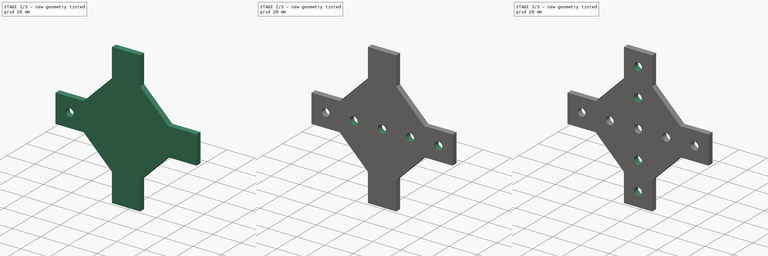
[diagram: build sequence overview — one tinted view per stage of 3, left to right]
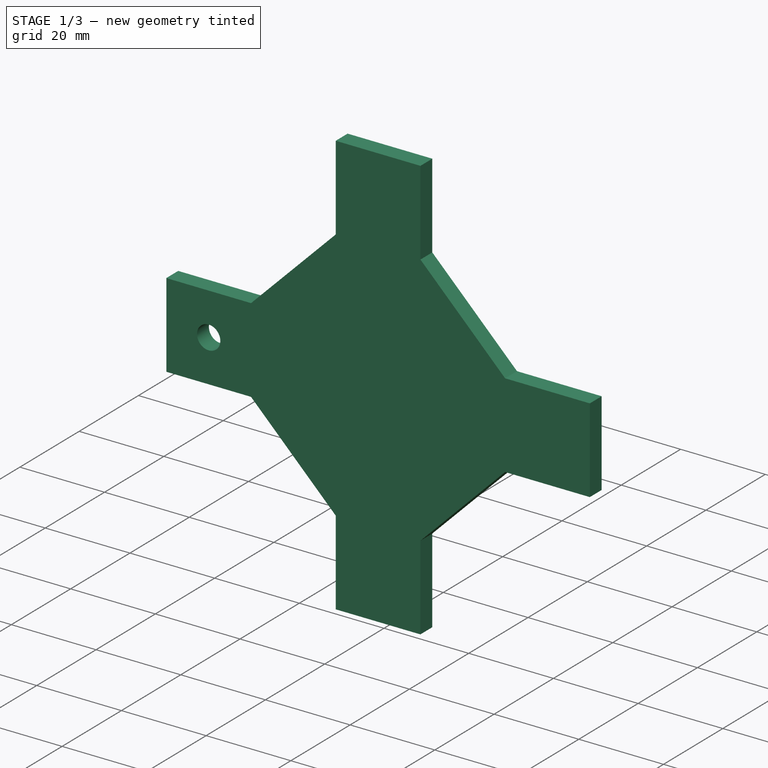
[diagram: stage 1 of 3 — iso view after this stage's code; geometry added in this stage tinted green]
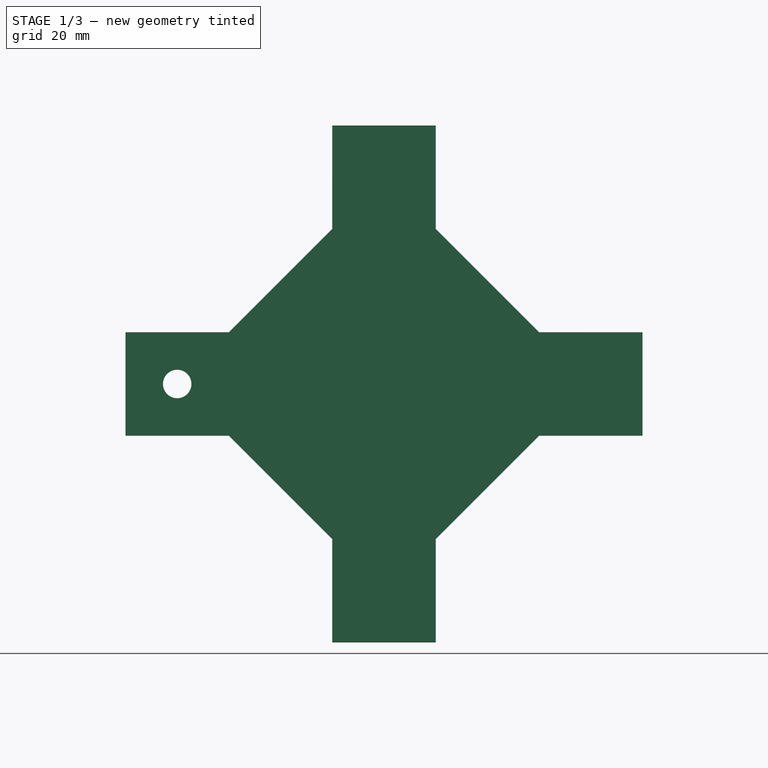
[diagram: stage 1 of 3 — front view after this stage's code; geometry added in this stage tinted green]
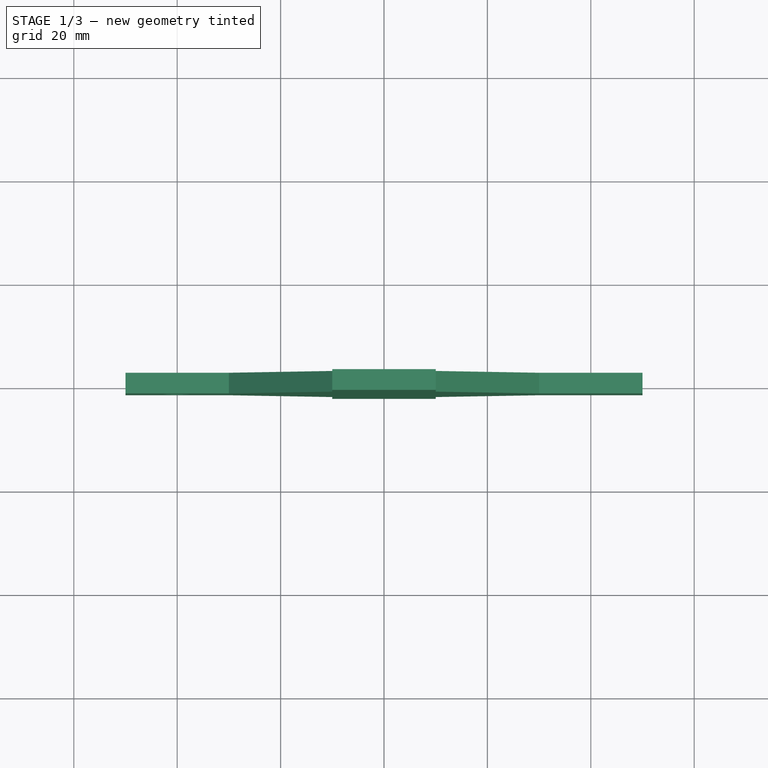
[diagram: stage 1 of 3 — top view after this stage's code; geometry added in this stage tinted green]
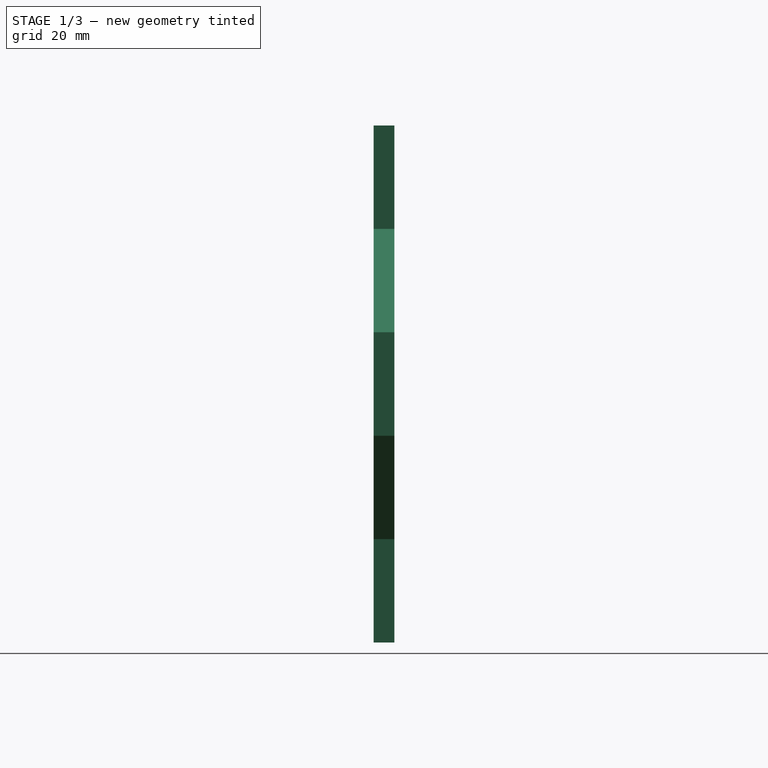
[diagram: stage 1 of 3 — right view after this stage's code; geometry added in this stage tinted green]
FCSTD DOCUMENT  (FreeCAD 0.21R30492 (Git))
Label: X-shape_brackets
License: Creative Commons Attribution-NonCommercial-ShareAlike
LicenseURL: http://creativecommons.org/licenses/by-nc-sa/4.0/
objects: Sketcher::SketchObject×3, PartDesign::Hole×2, PartDesign::LinearPattern×2, Spreadsheet::Sheet×1, PartDesign::Pad×1, PartDesign::Body×1, App::Part×1
note: 12 computed .brp shape members not serialized (recipe doc carries the construction recipe); baked Part::Feature solids carry a one-line shape summary decoded from their .brp

FEATURE [Sketcher::SketchObject] Sketch
  FullyConstrained = true
  MapMode = 5
  Placement = pos=(0,0,0) rot=(1,0,0;1.5708rad)
  Support = -> [XZ_Plane001]
  expr: Constraints[23] = <<Spreadsheet>>.Profile_size
  expr: Constraints[24] = <<Spreadsheet>>.Height
  expr: Constraints[25] = <<Spreadsheet>>.Width
  expr: Constraints[62] = <<Spreadsheet>>.ch_W
  expr: Constraints[63] = <<Spreadsheet>>.ch_H
  sketch-geometry (26):
    g0: LineSegment StartX=-10 StartY=50 StartZ=0 EndX=-10 EndY=-50 EndZ=0
    g1: LineSegment StartX=-10 StartY=-50 StartZ=0 EndX=10 EndY=-50 EndZ=0
    g2: LineSegment StartX=10 StartY=-50 StartZ=0 EndX=10 EndY=50 EndZ=0
    g3: LineSegment StartX=10 StartY=50 StartZ=0 EndX=-10 EndY=50 EndZ=0
    g4: GeomPoint X=0 Y=0 Z=0
    g5: LineSegment StartX=-50 StartY=-10 StartZ=0 EndX=-50 EndY=10 EndZ=0
    g6: LineSegment StartX=-50 StartY=10 StartZ=0 EndX=50 EndY=10 EndZ=0
    g7: LineSegment StartX=50 StartY=10 StartZ=0 EndX=50 EndY=-10 EndZ=0
    g8: LineSegment StartX=50 StartY=-10 StartZ=0 EndX=-50 EndY=-10 EndZ=0
    g9: GeomPoint X=0 Y=0 Z=0
    g10: LineSegment StartX=-10 StartY=50 StartZ=0 EndX=10 EndY=50 EndZ=0
    g11: LineSegment StartX=10 StartY=50 StartZ=0 EndX=10 EndY=30 EndZ=0
    g12: LineSegment StartX=10 StartY=30 StartZ=0 EndX=30 EndY=10 EndZ=0
    g13: LineSegment StartX=30 StartY=10 StartZ=0 EndX=50 EndY=10 EndZ=0
    g14: LineSegment StartX=50 StartY=10 StartZ=0 EndX=50 EndY=-10 EndZ=0
    g15: LineSegment StartX=50 StartY=-10 StartZ=0 EndX=30 EndY=-10 EndZ=0
    g16: LineSegment StartX=30 StartY=-10 StartZ=0 EndX=10 EndY=-30 EndZ=0
    g17: LineSegment StartX=10 StartY=-30 StartZ=0 EndX=10 EndY=-50 EndZ=0
    g18: LineSegment StartX=10 StartY=-50 StartZ=0 EndX=-10 EndY=-50 EndZ=0
    g19: LineSegment StartX=-10 StartY=-50 StartZ=0 EndX=-10 EndY=-30 EndZ=0
    g20: LineSegment StartX=-10 StartY=-30 StartZ=0 EndX=-30 EndY=-10 EndZ=0
    g21: LineSegment StartX=-30 StartY=-10 StartZ=0 EndX=-50 EndY=-10 EndZ=0
    g22: LineSegment StartX=-50 StartY=-10 StartZ=0 EndX=-50 EndY=10 EndZ=0
    g23: LineSegment StartX=-50 StartY=10 StartZ=0 EndX=-30 EndY=10 EndZ=0
    g24: LineSegment StartX=-30 StartY=10 StartZ=0 EndX=-10 EndY=30 EndZ=0
    g25: LineSegment StartX=-10 StartY=30 StartZ=0 EndX=-10 EndY=50 EndZ=0
  constraints (64):
    c: Coincident(g0,g1)
    c: Coincident(g1,g2)
    c: Coincident(g2,g3)
    c: Coincident(g3,g0)
    c: Horizontal(g1)
    c: Horizontal(g3)
    c: Vertical(g0)
    c: Vertical(g2)
    c: Symmetric(g1,g0,g4)
    c: Coincident(g4,g-1)
    c: Coincident(g5,g6)
    c: Coincident(g6,g7)
    c: Coincident(g7,g8)
    c: Coincident(g8,g5)
    c: Horizontal(g6)
    c: Horizontal(g8)
    c: Vertical(g5)
    c: Vertical(g7)
    c: Symmetric(g6,g5,g9)
    c: Coincident(g9,g4)
    c: Equal(g3,g7)
    c: Coincident(g10,g0)
    c: Coincident(g10,g2)
    c: DistanceX(g10,g10) = 20
    c: DistanceY(g0,g0) = 100
    c: DistanceX(g8,g8) = 100
    c: Coincident(g10,g11)
    c: PointOnObject(g11,g2)
    c: Coincident(g11,g12)
    c: PointOnObject(g12,g6)
    c: Coincident(g12,g13)
    c: Coincident(g13,g6)
    c: Coincident(g13,g14)
    c: Coincident(g14,g7)
    c: Coincident(g14,g15)
    c: PointOnObject(g15,g8)
    c: Coincident(g15,g16)
    c: PointOnObject(g16,g2)
    c: Coincident(g16,g17)
    c: Coincident(g17,g1)
    c: Coincident(g17,g18)
    c: Coincident(g18,g0)
    c: Coincident(g18,g19)
    c: PointOnObject(g19,g0)
    c: Coincident(g19,g20)
    c: PointOnObject(g20,g8)
    c: Coincident(g20,g21)
    c: Coincident(g21,g5)
    c: Coincident(g21,g22)
    c: Coincident(g22,g5)
    c: Coincident(g22,g23)
    c: PointOnObject(g23,g6)
    c: Coincident(g23,g24)
    c: PointOnObject(g24,g0)
    c: Coincident(g24,g25)
    c: Coincident(g25,g10)
    c: Equal(g17,g19)
    c: Equal(g19,g25)
    c: Equal(g25,g11)
    c: Equal(g13,g15)
    c: Equal(g15,g21)
    c: Equal(g21,g23)
    c: DistanceX(g12,g12) = 20
    c: DistanceY(g12,g12) = 20
FEATURE [Spreadsheet::Sheet] Spreadsheet
  cells = A1=Collection of X shape corner brackets to be used wth T slot Aluminum profiles; A4=Profile size:; B4(Profile_size)=20; C4=Could be: 20, 30, 40; A6=Model; B6=Width; C6=Height; D6=Chamfer Width; E6=Chamfer Height; F6=Horizontal holes; G6=Vertical holes; H6=Hole size; A7==hiddenref(Part.shapeType.String); B7(Width)==.B12; C7(Height)==.C12; D7(ch_W)==.D12; E7(ch_H)==.E12; F7(holesH)==.F12; G7(holesV)==.G12; H7(hole_size)==.H12; A8=Short 1; B8==3 * B4; C8==5 * B4; D8=0.1; E8=0.1; F8=3; G8=5; H8=M5; A9=Short 2; B9==3 * B4; C9==5 * B4; D9==B4 - 0.1; E9==B4; F9=3; G9=5; H9=M5; A10=Short 3; B10==3 * B4; C10==5 * B4; D10==B4 - 0.1; E10==2 * B4 - 0.1; F10=3; G10=5; H10=M5; A11=Uniform 1; B11==5 * B4; C11==5 * B4; D11=0.1; E11=0.1; F11=5; G11=5; H11=M5; A12=Uniform 2; B12==5 * B4; C12==5 * B4; D12==B4; E12==B4; F12=5; G12=5; H12=M5; A13=Uniform 3; B13==5 * B4; C13==5 * B4; D13==2 * B4 - 0.1; E13==2 * B4 - 0.1; F13=5; G13=5; H13=M5
  expr: .cells.Bind.B7.ZZ7 = tuple(.cells; <<B>> + str(hiddenref(Part.shapeType) + 8); <<ZZ>> + str(hiddenref(Part.shapeType) + 8))
FEATURE [PartDesign::Pad] Pad
  Direction = (0,-1,2e-16)
  Length = 4
  Length2 = 10
  Midplane = true
  Placement = pos=(0,0,0) rot=(1,0,0;1.5708rad)
  Profile = -> Sketch
  ReferenceAxis = -> Sketch [N_Axis]
  Type = 0
FEATURE [Sketcher::SketchObject] Sketch001
  AttachmentOffset = pos=(0,0,2) rot=(0,0,1;0rad)
  FullyConstrained = true
  MapMode = 5
  Placement = pos=(0,-2,4e-16) rot=(1,0,0;1.5708rad)
  Support = -> [XZ_Plane001]
  expr: Constraints[1] = 10 + -<<Spreadsheet>>.holesH * <<Spreadsheet>>.Profile_size / 2
  sketch-geometry (1):
    g0: Circle CenterX=-40 CenterY=0 CenterZ=0 NormalX=0 NormalY=0 NormalZ=1 AngleXU=0 Radius=2.5
  constraints (3):
    c: Diameter(g0) = 5
    c: DistanceX(g0) = -40
    c: PointOnObject(g0,g-1)
FEATURE [PartDesign::Hole] Hole  label="Hole_H"
  BaseFeature = -> Pad
  CustomThreadClearance = 0
  Depth = 25
  DepthType = 0
  Diameter = 5.5
  DrillForDepth = false
  DrillPoint = 1
  DrillPointAngle = 118
  HoleCutCountersinkAngle = 90
  HoleCutCustomValues = false
  HoleCutDepth = 0
  HoleCutDiameter = 6.1
  HoleCutType = 0
  ModelThread = false
  Placement = pos=(0,0,0) rot=(1,0,0;1.5708rad)
  Profile = -> Sketch001
  Tapered = false
  TaperedAngle = 90
  ThreadClass = 0
  ThreadDepth = 25
  ThreadDepthType = 0
  ThreadDirection = 0
  ThreadFit = 0
  ThreadSize = 13
  ThreadType = 1
  Threaded = false
  UseCustomThreadClearance = false
  expr: ThreadSize = <<Spreadsheet>>.hole_size
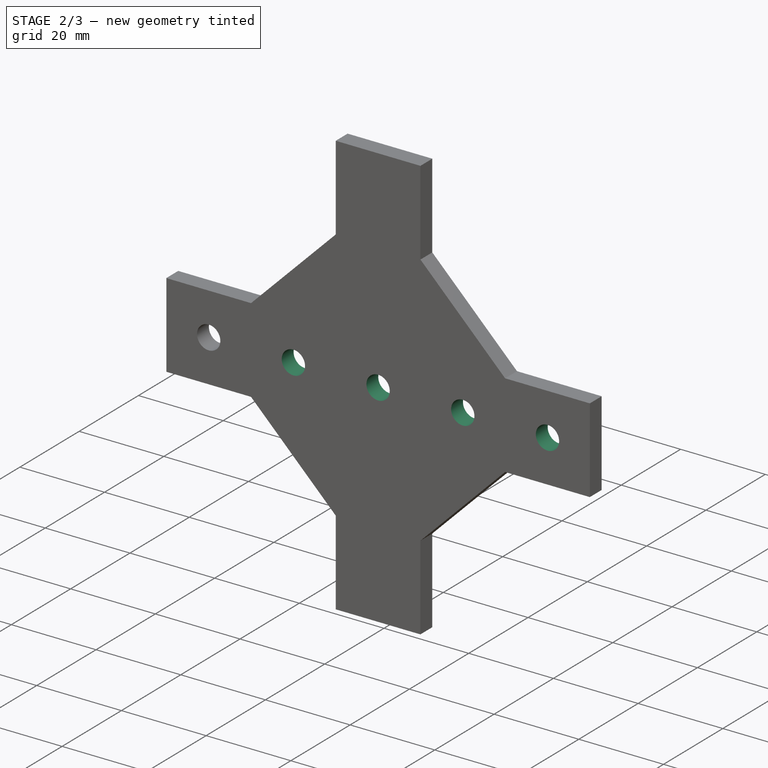
[diagram: stage 2 of 3 — iso view after this stage's code; geometry added in this stage tinted green]
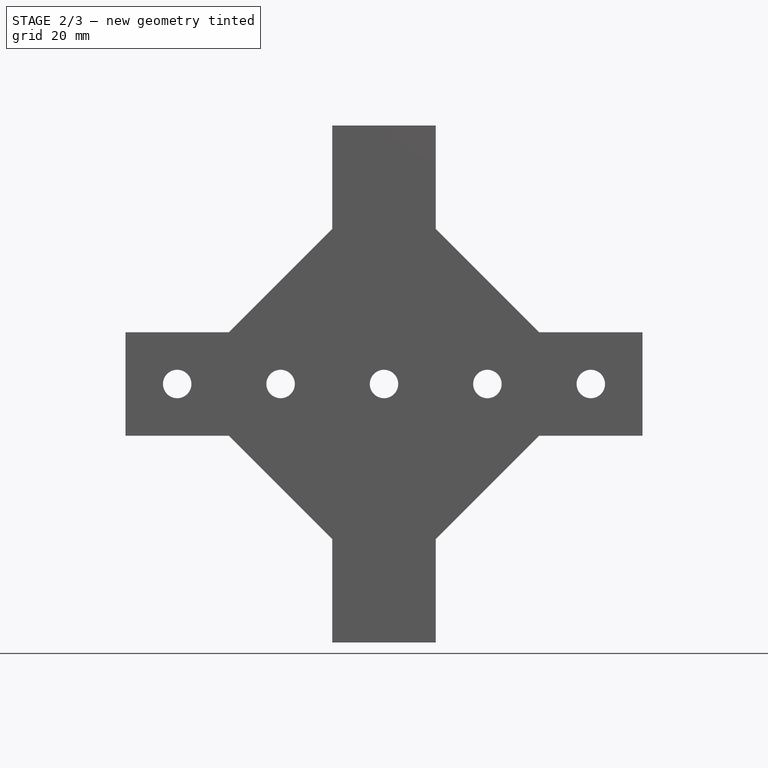
[diagram: stage 2 of 3 — front view after this stage's code; geometry added in this stage tinted green]
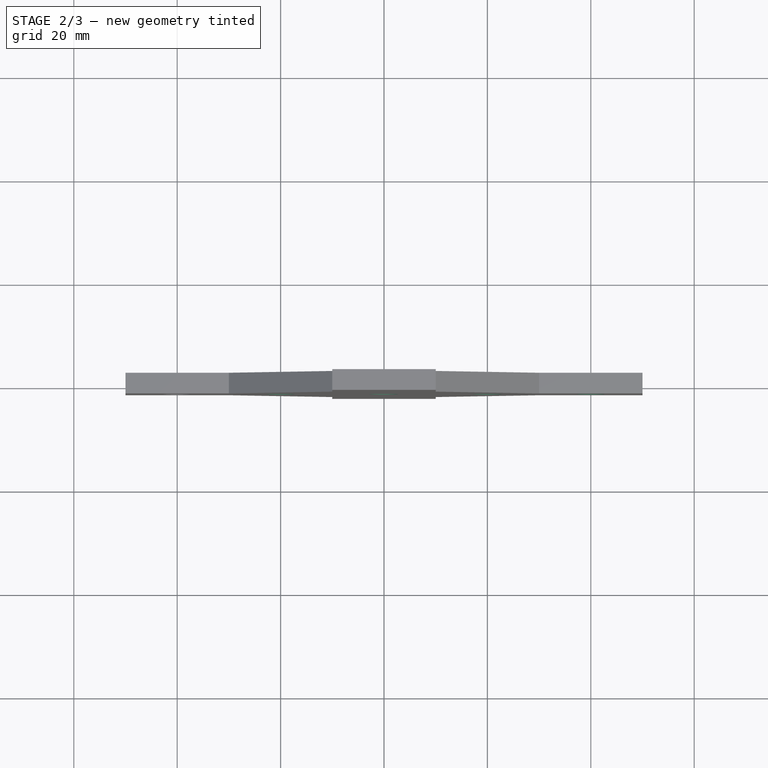
[diagram: stage 2 of 3 — top view after this stage's code; geometry added in this stage tinted green]
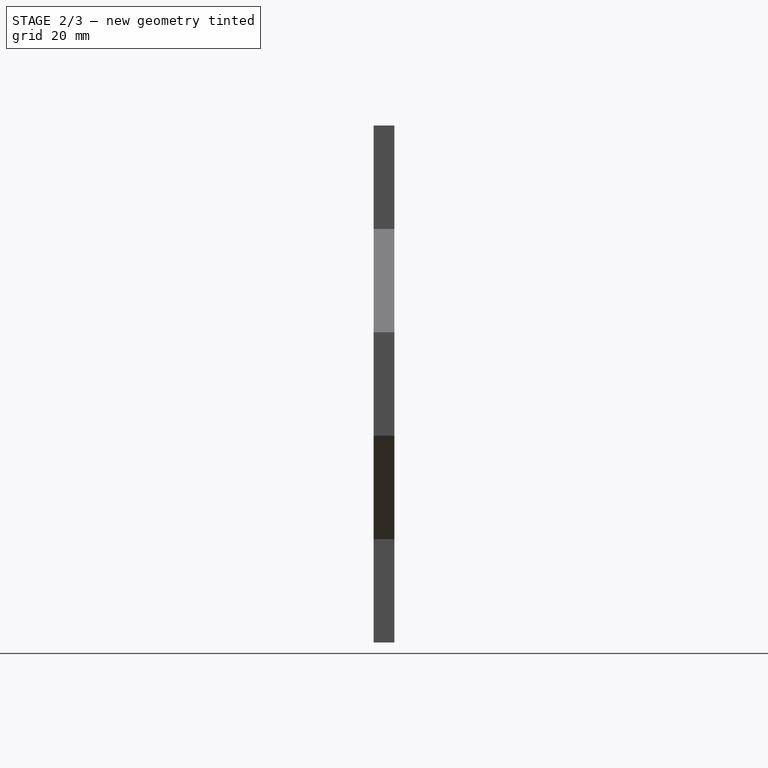
[diagram: stage 2 of 3 — right view after this stage's code; geometry added in this stage tinted green]
FEATURE [PartDesign::LinearPattern] LinearPattern
  BaseFeature = -> Hole
  Direction = -> Sketch001 [H_Axis]
  Length = 80
  Occurrences = 5
  Originals = -> [Hole]
  Placement = pos=(0,0,0) rot=(1,0,0;1.5708rad)
  expr: Length = <<Spreadsheet>>.Profile_size * (Spreadsheet.holesH - 1)
  expr: Occurrences = <<Spreadsheet>>.holesH
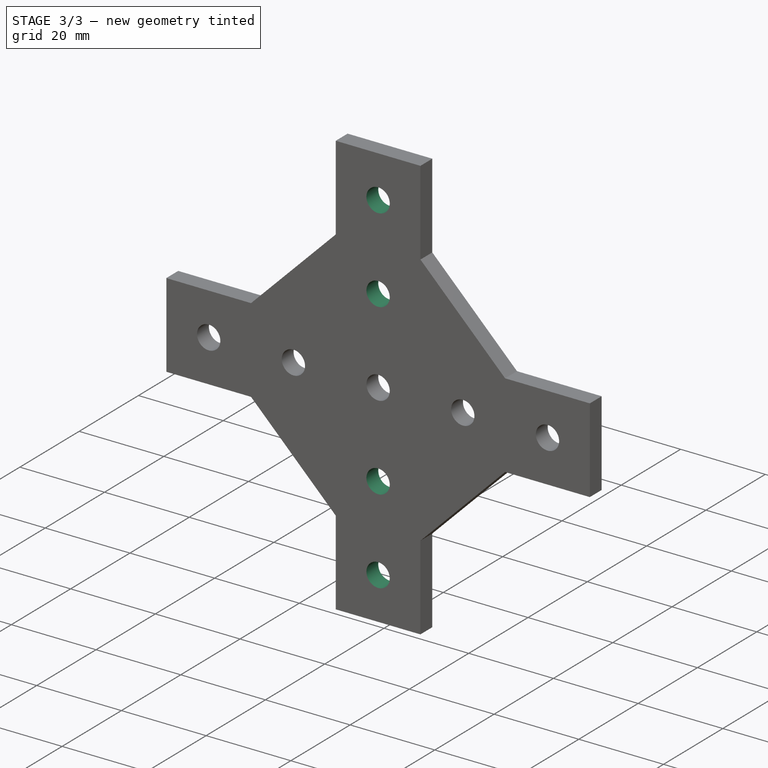
[diagram: stage 3 of 3 — iso view after this stage's code; geometry added in this stage tinted green]
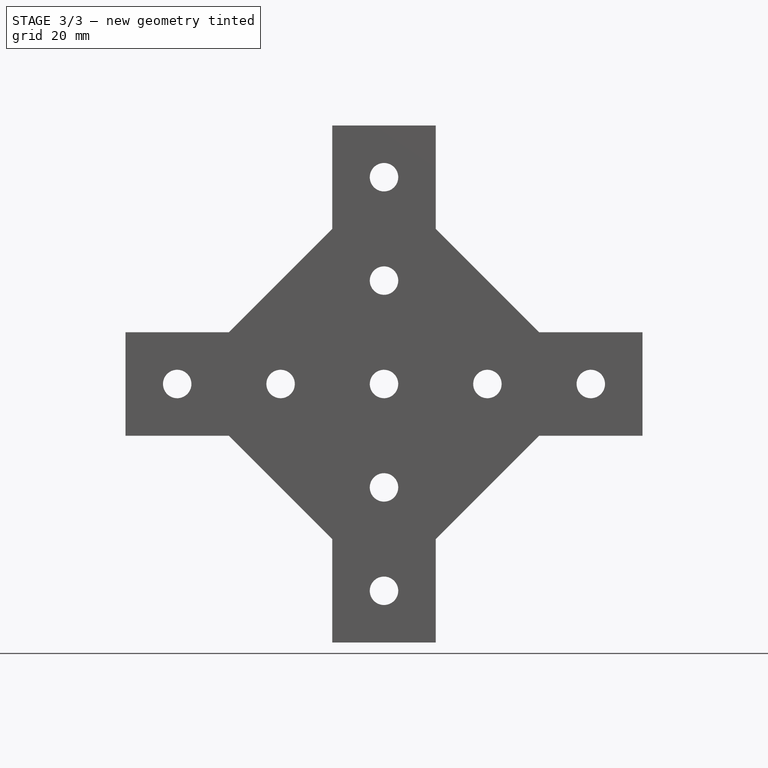
[diagram: stage 3 of 3 — front view after this stage's code; geometry added in this stage tinted green]
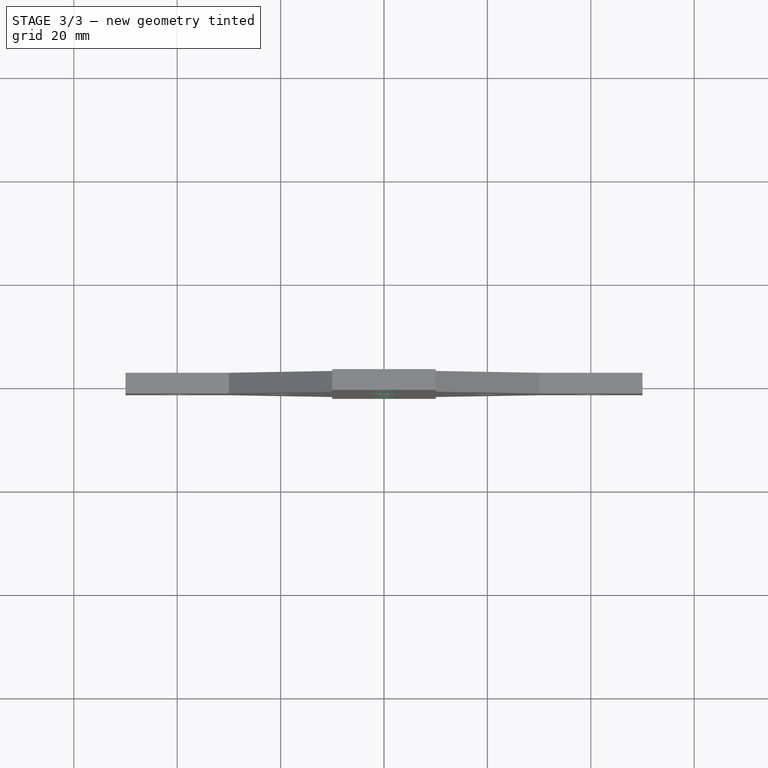
[diagram: stage 3 of 3 — top view after this stage's code; geometry added in this stage tinted green]
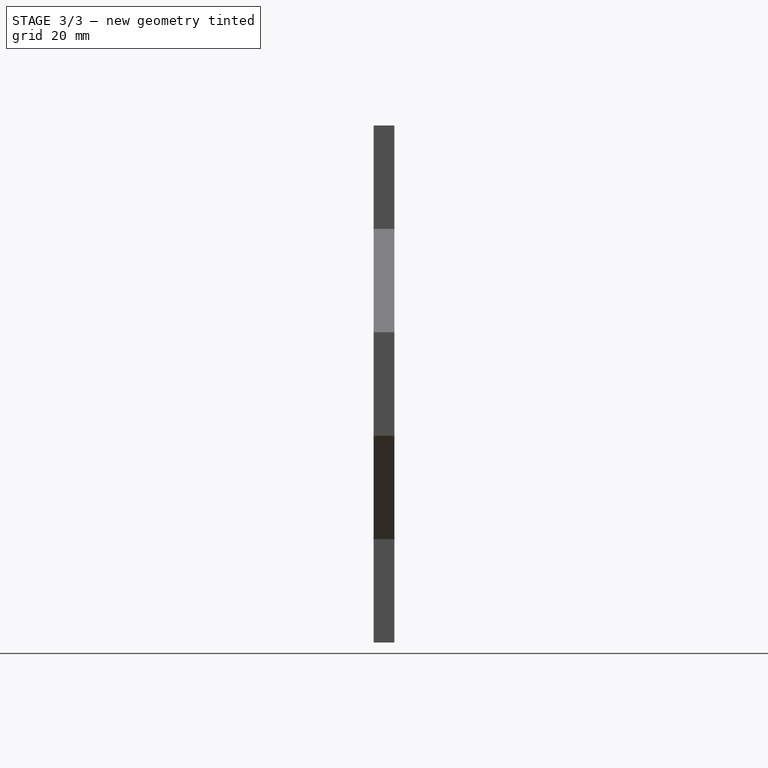
[diagram: stage 3 of 3 — right view after this stage's code; geometry added in this stage tinted green]
FEATURE [Sketcher::SketchObject] Sketch002
  AttachmentOffset = pos=(0,0,2) rot=(0,0,1;0rad)
  FullyConstrained = true
  MapMode = 5
  Placement = pos=(0,-2,4e-16) rot=(1,0,0;1.5708rad)
  Support = -> [XZ_Plane001]
  expr: Constraints[2] = 10 + -<<Spreadsheet>>.holesV * <<Spreadsheet>>.Profile_size / 2
  sketch-geometry (1):
    g0: Circle CenterX=0 CenterY=-40 CenterZ=0 NormalX=0 NormalY=0 NormalZ=1 AngleXU=0 Radius=2.5
  constraints (3):
    c: PointOnObject(g0,g-2)
    c: Diameter(g0) = 5
    c: DistanceY(g0) = -40
FEATURE [PartDesign::Hole] Hole001  label="Hole_V"
  BaseFeature = -> LinearPattern
  CustomThreadClearance = 0
  Depth = 25
  DepthType = 0
  Diameter = 5.5
  DrillForDepth = false
  DrillPoint = 1
  DrillPointAngle = 118
  HoleCutCountersinkAngle = 90
  HoleCutCustomValues = false
  HoleCutDepth = 0
  HoleCutDiameter = 6.1
  HoleCutType = 0
  ModelThread = false
  Placement = pos=(0,0,0) rot=(1,0,0;1.5708rad)
  Profile = -> Sketch002
  Tapered = false
  TaperedAngle = 90
  ThreadClass = 0
  ThreadDepth = 25
  ThreadDepthType = 0
  ThreadDirection = 0
  ThreadFit = 0
  ThreadSize = 13
  ThreadType = 1
  Threaded = false
  UseCustomThreadClearance = false
  expr: ThreadSize = <<Spreadsheet>>.hole_size
FEATURE [PartDesign::LinearPattern] LinearPattern001
  BaseFeature = -> Hole001
  Direction = -> Sketch002 [V_Axis]
  Length = 80
  Occurrences = 5
  Originals = -> [Hole001]
  Placement = pos=(0,0,0) rot=(1,0,0;1.5708rad)
  expr: Length = <<Spreadsheet>>.Profile_size * (Spreadsheet.holesV - 1)
  expr: Occurrences = <<Spreadsheet>>.holesV
FEATURE [PartDesign::Body] Body
  Group = -> [Sketch,Pad,Sketch001,Hole,LinearPattern,Sketch002,Hole001,LinearPattern001]
  Origin = -> Origin001
  Tip = -> LinearPattern001
FEATURE [App::Part] Part  label="X shape bracket"
  Group = -> [Body]
  Origin = -> Origin
  shapeType = 4
  expr: .shapeType.Enum = Spreadsheet.cells[<<A8:|>>]
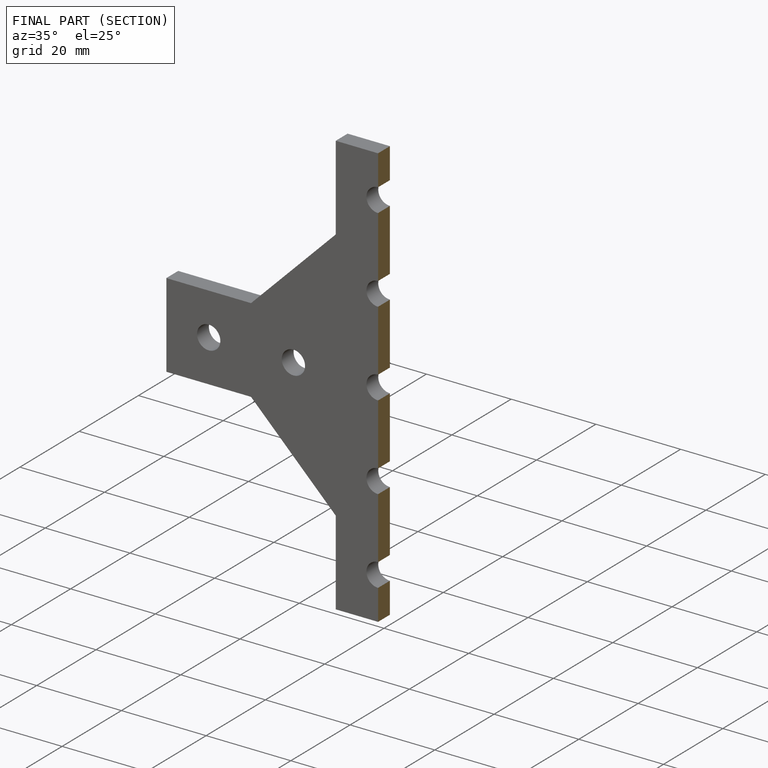
[diagram: finished part — half-section view (interior)]
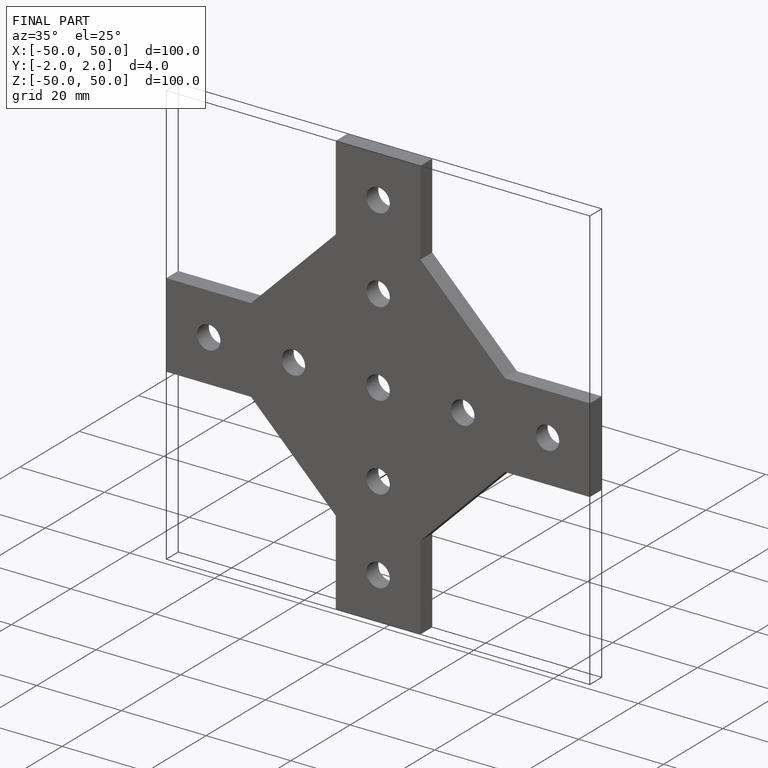
[diagram: finished part — iso view with bounding-box wireframe]
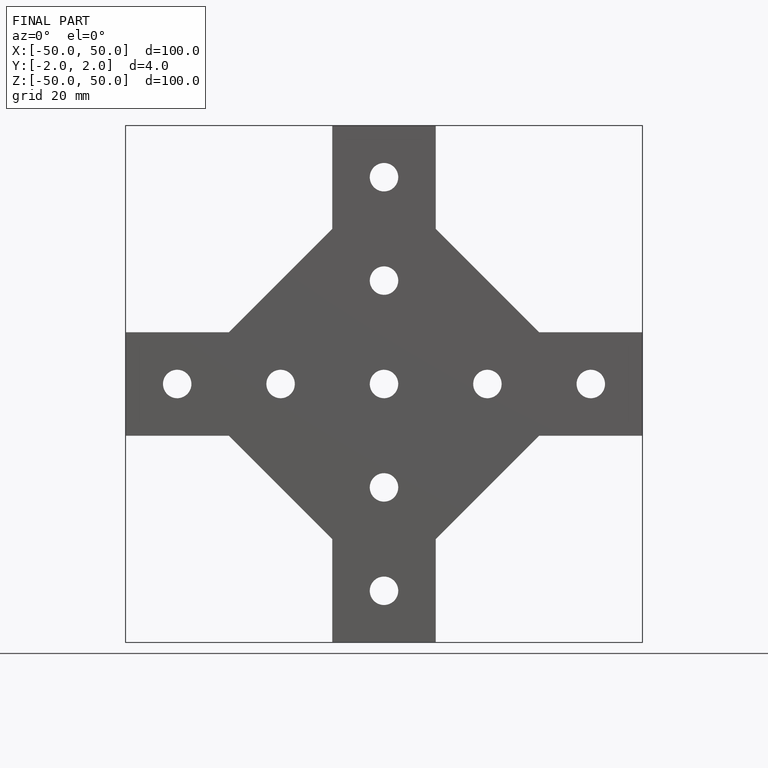
[diagram: finished part — front view with bounding-box wireframe]
